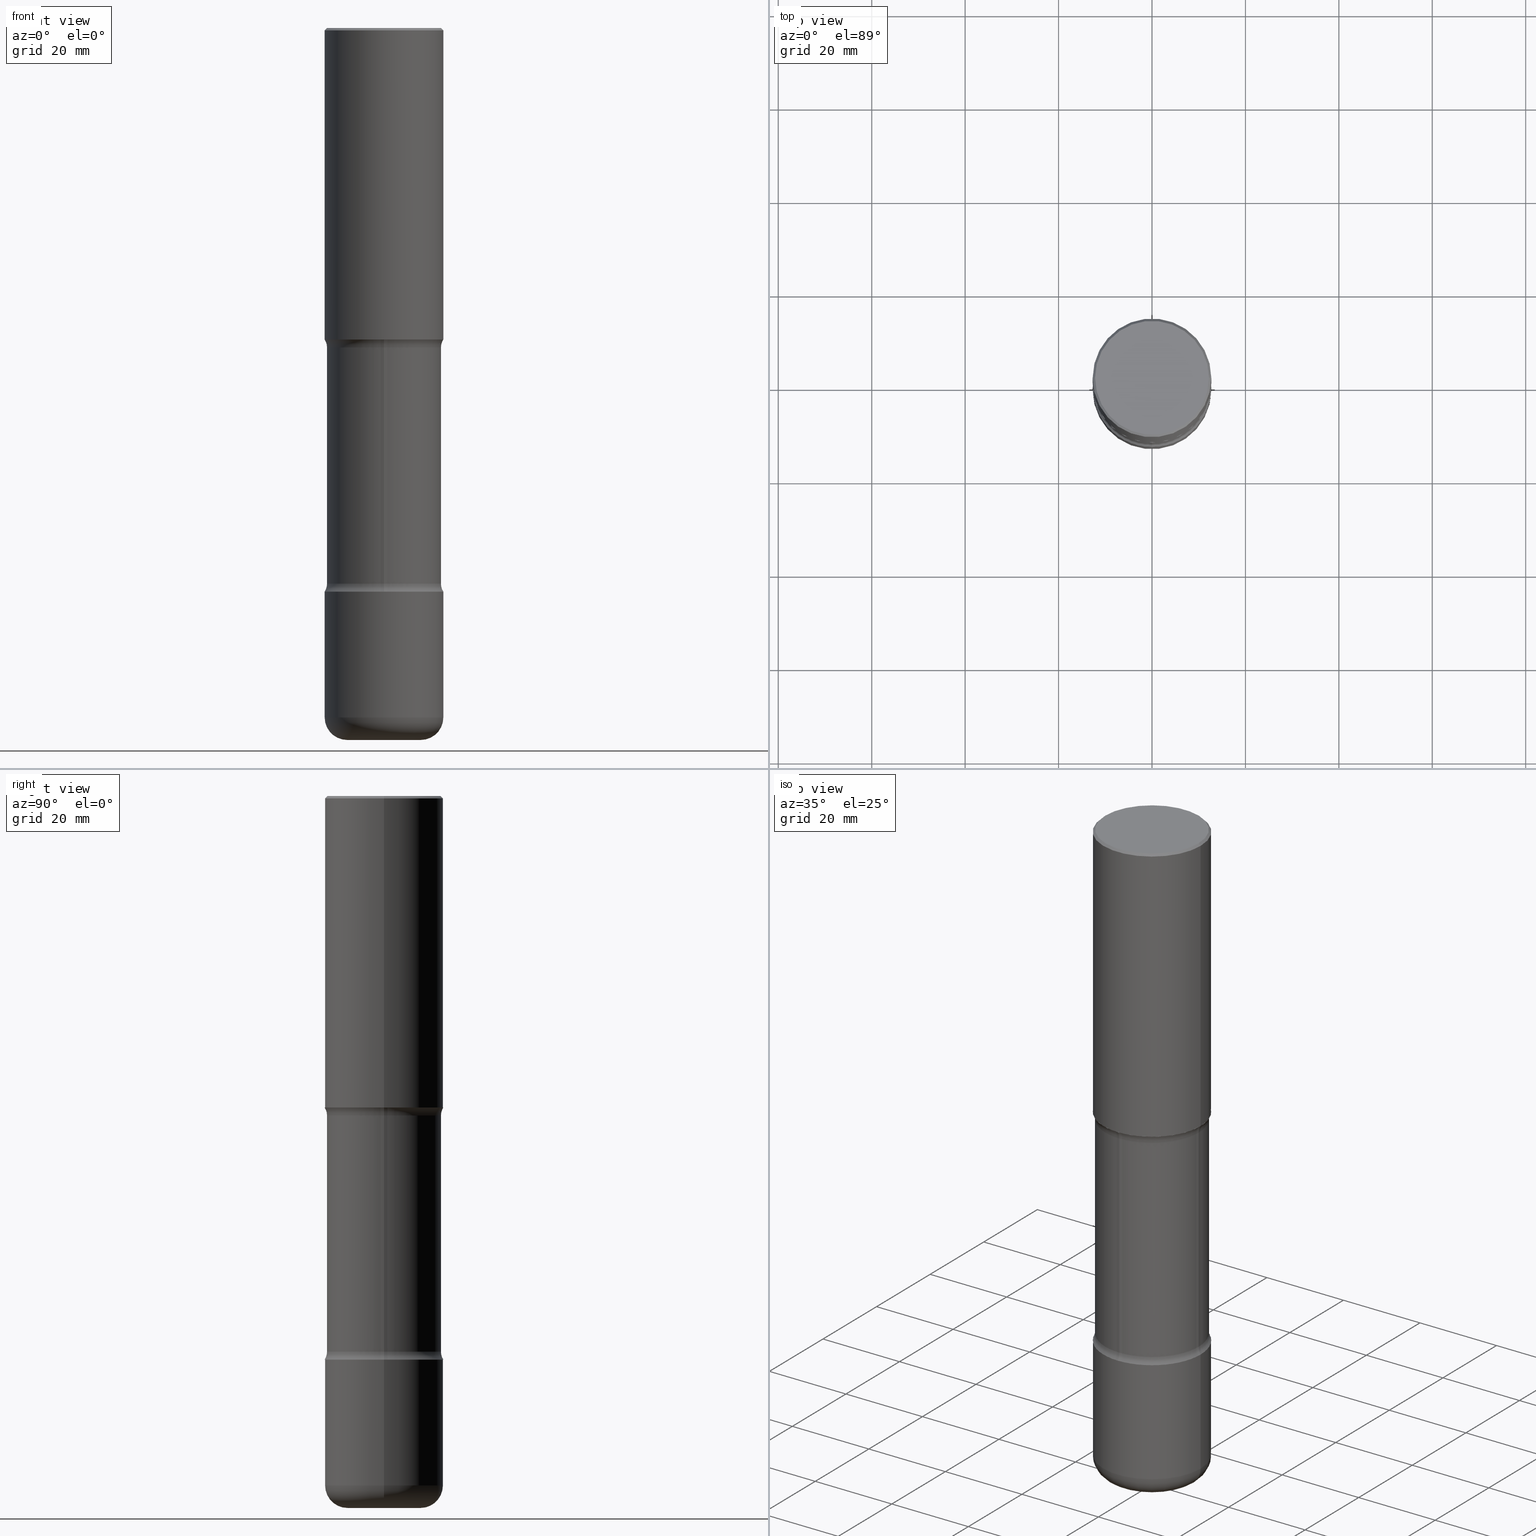
[diagram: canonical four-view strip — front | top / right | iso, engineering-drawing reading convention]
A machine part, canonical four-view strip (front | top / right | iso — engineering-drawing reading convention). The complete STEP part file that produces these views, byte-faithful:
ISO-10303-21;
HEADER;
FILE_DESCRIPTION (( 'STEP AP203' ),
    '1' );
FILE_NAME ('35811.STEP',
    '2023-03-11T07:11:37',
    ( '' ),
    ( '' ),
    'SwSTEP 2.0',
    'SolidWorks 2022',
    '' );
FILE_SCHEMA (( 'CONFIG_CONTROL_DESIGN' ));
ENDSEC;

DATA;
#1 = DIRECTION ( 'NONE',  ( 0.000000000000000000, 0.000000000000000000, 1.000000000000000000 ) ) ;
#2 = DIRECTION ( 'NONE',  ( -2.445468806185136597E-29, 3.491481338843145583E-15, 1.000000000000000000 ) ) ;
#3 = ADVANCED_FACE ( 'NONE', ( #529 ), #305, .F. ) ;
#4 = CC_DESIGN_DATE_AND_TIME_ASSIGNMENT ( #755, #13, ( #414 ) ) ;
#5 = COORDINATED_UNIVERSAL_TIME_OFFSET ( 5, 0, .BEHIND. ) ;
#6 = AXIS2_PLACEMENT_3D ( 'NONE', #154, #294, #217 ) ;
#7 = VECTOR ( 'NONE', #96, 39.37007874015748143 ) ;
#8 = EDGE_LOOP ( 'NONE', ( #787, #21 ) ) ;
#9 = CARTESIAN_POINT ( 'NONE',  ( -0.4799999999999999267, -5.801881002088561447E-15, -2.692823299831254236 ) ) ;
#10 =( GEOMETRIC_REPRESENTATION_CONTEXT ( 3 ) GLOBAL_UNCERTAINTY_ASSIGNED_CONTEXT ( ( #152 ) ) GLOBAL_UNIT_ASSIGNED_CONTEXT ( ( #622, #498, #493 ) ) REPRESENTATION_CONTEXT ( 'NONE', 'WORKASPACE' ) );
#11 = TOROIDAL_SURFACE ( 'NONE', #664, 0.6050000000000000933, 0.1250000000000000000 ) ;
#12 = AXIS2_PLACEMENT_3D ( 'NONE', #806, #260, #743 ) ;
#13 = DATE_TIME_ROLE ( 'classification_date' ) ;
#14 = CYLINDRICAL_SURFACE ( 'NONE', #88, 0.5000000000000000000 ) ;
#15 = DIRECTION ( 'NONE',  ( -2.445468806185136597E-29, 3.491481338843145583E-15, 1.000000000000000000 ) ) ;
#16 = ORIENTED_EDGE ( 'NONE', *, *, #536, .T. ) ;
#17 = EDGE_CURVE ( 'NONE', #45, #494, #257, .T. ) ;
#18 = PRODUCT_DEFINITION ( 'UNKNOWN', '', #557, #621 ) ;
#19 = CARTESIAN_POINT ( 'NONE',  ( 6.419355616235984688E-29, -9.165138514463258190E-15, -2.625000000000000444 ) ) ;
#20 = CARTESIAN_POINT ( 'NONE',  ( 1.467281283711081734E-28, -2.094888803305886955E-14, -5.999999999999999112 ) ) ;
#21 = ORIENTED_EDGE ( 'NONE', *, *, #271, .T. ) ;
#22 = CARTESIAN_POINT ( 'NONE',  ( -0.4799999999999996492, 3.386736898677836436E-15, 1.280553747027767124E-17 ) ) ;
#23 = TOROIDAL_SURFACE ( 'NONE', #653, 0.6050000000000000933, 0.1250000000000000000 ) ;
#24 = APPROVAL_PERSON_ORGANIZATION ( #454, #462, #693 ) ;
#25 = DIRECTION ( 'NONE',  ( -1.000000000000000000, 7.105427357601001859E-15, 0.000000000000000000 ) ) ;
#26 = DIRECTION ( 'NONE',  ( 2.513195084323526863E-29, -3.394493453808608059E-15, -1.000000000000000000 ) ) ;
#27 = DIRECTION ( 'NONE',  ( 1.000000000000000000, -6.982962677686261189E-15, 0.000000000000000000 ) ) ;
#28 = ORIENTED_EDGE ( 'NONE', *, *, #56, .T. ) ;
#29 = DIRECTION ( 'NONE',  ( 6.982962677686265922E-15, 1.000000000000000000, -3.278217592397115862E-15 ) ) ;
#30 = ORIENTED_EDGE ( 'NONE', *, *, #340, .T. ) ;
#31 = DIRECTION ( 'NONE',  ( 1.000000000000000000, -6.982962677686265133E-15, 4.883557194083112340E-29 ) ) ;
#32 = DIRECTION ( 'NONE',  ( -2.445468806185136597E-29, 3.491481338843145583E-15, 1.000000000000000000 ) ) ;
#33 = EDGE_CURVE ( 'NONE', #311, #494, #176, .T. ) ;
#34 = AXIS2_PLACEMENT_3D ( 'NONE', #156, #81, #83 ) ;
#35 = DIRECTION ( 'NONE',  ( 2.513195084323526863E-29, -3.394493453808608059E-15, -1.000000000000000000 ) ) ;
#36 = CARTESIAN_POINT ( 'NONE',  ( 1.109289089035737502E-27, -1.583770827071991708E-13, -45.36099934008962720 ) ) ;
#37 = EDGE_CURVE ( 'NONE', #120, #599, #371, .T. ) ;
#38 = CARTESIAN_POINT ( 'NONE',  ( -0.4999999999999996114, -1.673279289987817833E-14, -5.810000000000000497 ) ) ;
#39 = ORIENTED_EDGE ( 'NONE', *, *, #652, .T. ) ;
#40 = ORIENTED_EDGE ( 'NONE', *, *, #392, .T. ) ;
#41 = ADVANCED_FACE ( 'NONE', ( #501 ), #11, .F. ) ;
#42 = DIRECTION ( 'NONE',  ( 6.982962677686265922E-15, 1.000000000000000000, -2.276539994720218757E-15 ) ) ;
#43 = CARTESIAN_POINT ( 'NONE',  ( 0.5000000000000001110, -2.007601769834807675E-14, -4.750000000000000000 ) ) ;
#44 = DIRECTION ( 'NONE',  ( -2.438088387897960049E-29, 3.491481338843145188E-15, 1.000000000000000000 ) ) ;
#45 = VERTEX_POINT ( 'NONE', #636 ) ;
#46 = AXIS2_PLACEMENT_3D ( 'NONE', #198, #203, #377 ) ;
#47 = VECTOR ( 'NONE', #109, 39.37007874015748854 ) ;
#48 = AXIS2_PLACEMENT_3D ( 'NONE', #368, #57, #543 ) ;
#49 = AXIS2_PLACEMENT_3D ( 'NONE', #427, #216, #580 ) ;
#50 = CARTESIAN_POINT ( 'NONE',  ( 1.473465238116466876E-28, -2.079683321267085678E-14, -5.990920599932144874 ) ) ;
#51 = ADVANCED_FACE ( 'NONE', ( #625 ), #433, .T. ) ;
#52 = ORIENTED_EDGE ( 'NONE', *, *, #641, .T. ) ;
#53 = ORIENTED_EDGE ( 'NONE', *, *, #188, .T. ) ;
#54 = CARTESIAN_POINT ( 'NONE',  ( -0.5000000000000001110, -1.303182268070444404E-14, -4.750000000000000000 ) ) ;
#55 = ORIENTED_EDGE ( 'NONE', *, *, #578, .T. ) ;
#56 = EDGE_CURVE ( 'NONE', #183, #422, #802, .T. ) ;
#57 = DIRECTION ( 'NONE',  ( 2.513195084323526863E-29, -3.394493453808608059E-15, -1.000000000000000000 ) ) ;
#58 = DIRECTION ( 'NONE',  ( -2.445468806185136597E-29, 3.491481338843145583E-15, 1.000000000000000000 ) ) ;
#59 = CARTESIAN_POINT ( 'NONE',  ( -0.5000000000000000000, -1.488230779029130882E-14, -4.750000000000000000 ) ) ;
#60 = ORIENTED_EDGE ( 'NONE', *, *, #499, .T. ) ;
#61 = CARTESIAN_POINT ( 'NONE',  ( 0.000000000000000000, 0.000000000000000000, 0.000000000000000000 ) ) ;
#62 = CARTESIAN_POINT ( 'NONE',  ( 6.585215380305856913E-29, -9.401942300162846399E-15, -2.692823299831254236 ) ) ;
#63 = CIRCLE ( 'NONE', #232, 0.4999999999999999445 ) ;
#64 = CARTESIAN_POINT ( 'NONE',  ( 5.810467183974084067E-16, -2.091718747715406976E-14, -5.990920599932144874 ) ) ;
#65 = CARTESIAN_POINT ( 'NONE',  ( 0.5000000000000001110, -1.265661985330639470E-14, -2.625000000000000444 ) ) ;
#66 = ORIENTED_EDGE ( 'NONE', *, *, #346, .F. ) ;
#67 = FACE_OUTER_BOUND ( 'NONE', #239, .T. ) ;
#68 = ORIENTED_EDGE ( 'NONE', *, *, #85, .T. ) ;
#69 = ADVANCED_FACE ( 'NONE', ( #496 ), #73, .T. ) ;
#70 = CARTESIAN_POINT ( 'NONE',  ( -0.5000000000000001110, -5.612424835662757260E-15, -2.625000000000000444 ) ) ;
#71 = ORIENTED_EDGE ( 'NONE', *, *, #226, .T. ) ;
#72 = DIRECTION ( 'NONE',  ( -2.445468806185136597E-29, 3.491481338843145583E-15, 1.000000000000000000 ) ) ;
#73 = PLANE ( 'NONE',  #626 ) ;
#74 = FACE_OUTER_BOUND ( 'NONE', #490, .T. ) ;
#75 = CIRCLE ( 'NONE', #502, 0.5000000000000000000 ) ;
#76 = CARTESIAN_POINT ( 'NONE',  ( -5.810467183971152463E-16, -2.091718747715406029E-14, -5.990920599932144874 ) ) ;
#77 = AXIS2_PLACEMENT_3D ( 'NONE', #175, #307, #416 ) ;
#78 = CYLINDRICAL_SURFACE ( 'NONE', #472, 0.4800000000000000933 ) ;
#79 = ORIENTED_EDGE ( 'NONE', *, *, #596, .F. ) ;
#80 = SECURITY_CLASSIFICATION_LEVEL ( 'unclassified' ) ;
#81 = DIRECTION ( 'NONE',  ( -6.982962677686266711E-15, -1.000000000000000000, 3.491481338843145583E-15 ) ) ;
#82 = CARTESIAN_POINT ( 'NONE',  ( -0.4999999999999996669, 3.421651712066267691E-15, -0.02000000000000010797 ) ) ;
#83 = DIRECTION ( 'NONE',  ( 1.000000000000000000, -6.982962677686265133E-15, 0.000000000000000000 ) ) ;
#84 = DIRECTION ( 'NONE',  ( 2.513195084323526863E-29, -3.394493453808608059E-15, -1.000000000000000000 ) ) ;
#85 = EDGE_CURVE ( 'NONE', #553, #125, #286, .T. ) ;
#86 = CARTESIAN_POINT ( 'NONE',  ( 1.505635220232202175E-28, -2.033614075875680157E-14, -5.990920599932144874 ) ) ;
#87 = DIRECTION ( 'NONE',  ( 6.982962677686266711E-15, 1.000000000000000000, -3.394493453808608453E-15 ) ) ;
#88 = AXIS2_PLACEMENT_3D ( 'NONE', #134, #629, #129 ) ;
#89 = CIRCLE ( 'NONE', #382, 0.4799999999999999267 ) ;
#90 = LOCAL_TIME ( 2, 11, 37.00000000000000000, #448 ) ;
#91 = CARTESIAN_POINT ( 'NONE',  ( 4.224692420000255573E-15, 0.6049999999999904343, -2.692823299831256456 ) ) ;
#92 = DIRECTION ( 'NONE',  ( 2.438088387897960049E-29, -3.491481338843145188E-15, -1.000000000000000000 ) ) ;
#93 = MANIFOLD_SOLID_BREP ( 'Body-Move/Copy2[2]', #675 ) ;
#94 = EDGE_CURVE ( 'NONE', #719, #183, #162, .T. ) ;
#95 = DIRECTION ( 'NONE',  ( -6.982962677686269077E-15, -1.000000000000000000, 0.000000000000000000 ) ) ;
#96 = DIRECTION ( 'NONE',  ( -2.445468806185136877E-29, 3.491481338843145188E-15, 1.000000000000000000 ) ) ;
#97 = FACE_OUTER_BOUND ( 'NONE', #756, .T. ) ;
#98 = DIRECTION ( 'NONE',  ( -1.000000000000000000, 6.982962677686266711E-15, 0.000000000000000000 ) ) ;
#99 = ADVANCED_FACE ( 'NONE', ( #67 ), #573, .T. ) ;
#100 = DIRECTION ( 'NONE',  ( -1.000000000000000000, 7.105427357600994759E-15, 0.000000000000000000 ) ) ;
#101 = ORIENTED_EDGE ( 'NONE', *, *, #453, .T. ) ;
#102 = CIRCLE ( 'NONE', #34, 0.1899999999999993361 ) ;
#103 = FACE_OUTER_BOUND ( 'NONE', #224, .T. ) ;
#104 = TOROIDAL_SURFACE ( 'NONE', #608, 0.6049999999999999822, 0.1250000000000001665 ) ;
#105 = AXIS2_PLACEMENT_3D ( 'NONE', #189, #431, #680 ) ;
#106 = FACE_OUTER_BOUND ( 'NONE', #284, .T. ) ;
#107 = VERTEX_POINT ( 'NONE', #488 ) ;
#108 = ORIENTED_EDGE ( 'NONE', *, *, #17, .T. ) ;
#109 = DIRECTION ( 'NONE',  ( 0.9993908270190957621, -6.978169709227544643E-15, -0.03489949670250174635 ) ) ;
#110 = LINE ( 'NONE', #423, #517 ) ;
#111 = ORIENTED_EDGE ( 'NONE', *, *, #606, .T. ) ;
#112 = ORIENTED_EDGE ( 'NONE', *, *, #442, .F. ) ;
#113 = CIRCLE ( 'NONE', #464, 0.4800000000000001488 ) ;
#114 = EDGE_LOOP ( 'NONE', ( #360, #731 ) ) ;
#115 = VECTOR ( 'NONE', #591, 39.37007874015748143 ) ;
#116 = APPROVAL_PERSON_ORGANIZATION ( #131, #247, #758 ) ;
#117 = EDGE_CURVE ( 'NONE', #180, #436, #603, .T. ) ;
#118 = CIRCLE ( 'NONE', #390, 0.1250000000000000278 ) ;
#119 = FACE_OUTER_BOUND ( 'NONE', #790, .T. ) ;
#120 = VERTEX_POINT ( 'NONE', #574 ) ;
#121 = ORIENTED_EDGE ( 'NONE', *, *, #733, .F. ) ;
#122 = DIRECTION ( 'NONE',  ( 6.860497997771532351E-15, 1.000000000000000000, 0.000000000000000000 ) ) ;
#123 = ADVANCED_FACE ( 'NONE', ( #272 ), #429, .T. ) ;
#124 = DIRECTION ( 'NONE',  ( 1.000000000000000000, -6.982962677686269866E-15, 0.000000000000000000 ) ) ;
#125 = VERTEX_POINT ( 'NONE', #441 ) ;
#126 = DIRECTION ( 'NONE',  ( 1.000000000000000000, -6.982962677686265133E-15, 0.000000000000000000 ) ) ;
#127 =( LENGTH_UNIT ( ) NAMED_UNIT ( * ) SI_UNIT ( $, .METRE. ) );
#128 = VERTEX_POINT ( 'NONE', #691 ) ;
#129 = DIRECTION ( 'NONE',  ( 1.000000000000000000, -6.982962677686266711E-15, 4.876176775795935793E-29 ) ) ;
#130 = AXIS2_PLACEMENT_3D ( 'NONE', #771, #230, #237 ) ;
#131 = PERSON_AND_ORGANIZATION ( #658, #206 ) ;
#132 = LOCAL_TIME ( 2, 11, 37.00000000000000000, #5 ) ;
#133 = ORIENTED_EDGE ( 'NONE', *, *, #297, .T. ) ;
#134 = CARTESIAN_POINT ( 'NONE',  ( 0.000000000000000000, 0.000000000000000000, 0.000000000000000000 ) ) ;
#135 = ORIENTED_EDGE ( 'NONE', *, *, #192, .F. ) ;
#136 = PERSON_AND_ORGANIZATION ( #658, #206 ) ;
#137 = VERTEX_POINT ( 'NONE', #567 ) ;
#138 = DATE_AND_TIME ( #558, #160 ) ;
#139 = CARTESIAN_POINT ( 'NONE',  ( 0.4800000000000000933, -1.251696059975266810E-14, -2.625000000000000444 ) ) ;
#140 = DIRECTION ( 'NONE',  ( -1.000000000000000000, 6.982962677686265922E-15, -4.876176775795935793E-29 ) ) ;
#141 = ADVANCED_FACE ( 'NONE', ( #742 ), #14, .T. ) ;
#142 = CALENDAR_DATE ( 2023, 11, 3 ) ;
#143 = CIRCLE ( 'NONE', #49, 0.5000000000000000000 ) ;
#144 = ADVANCED_FACE ( 'NONE', ( #384 ), #158, .F. ) ;
#145 = AXIS2_PLACEMENT_3D ( 'NONE', #718, #229, #168 ) ;
#146 = FACE_OUTER_BOUND ( 'NONE', #114, .T. ) ;
#147 = DIRECTION ( 'NONE',  ( 1.000000000000000000, -6.982962677686267499E-15, 4.876036955247132767E-29 ) ) ;
#148 = DIRECTION ( 'NONE',  ( 1.000000000000000000, -6.982962677686267499E-15, 4.876176775795936353E-29 ) ) ;
#149 = DIRECTION ( 'NONE',  ( 1.000000000000000000, 0.000000000000000000, 0.000000000000000000 ) ) ;
#150 = DIRECTION ( 'NONE',  ( 6.860497997771532351E-15, 1.000000000000000000, 0.000000000000000000 ) ) ;
#151 = ORIENTED_EDGE ( 'NONE', *, *, #774, .F. ) ;
#152 = UNCERTAINTY_MEASURE_WITH_UNIT (LENGTH_MEASURE( 1.000000000000000082E-05 ), #622, 'distance_accuracy_value', 'NONE');
#153 = ORIENTED_EDGE ( 'NONE', *, *, #562, .F. ) ;
#154 = CARTESIAN_POINT ( 'NONE',  ( 0.000000000000000000, 0.000000000000000000, 0.000000000000000000 ) ) ;
#155 = DIRECTION ( 'NONE',  ( -1.000000000000000000, 6.982962677686265922E-15, -4.883557194083112340E-29 ) ) ;
#156 = CARTESIAN_POINT ( 'NONE',  ( 0.3099999999999999978, -2.245022500876142257E-14, -5.810000000000000497 ) ) ;
#157 = DIRECTION ( 'NONE',  ( 1.000000000000000000, -6.982962677686267499E-15, 4.883557194083112901E-29 ) ) ;
#158 = TOROIDAL_SURFACE ( 'NONE', #714, 0.6050000000000000933, 0.1250000000000000000 ) ;
#159 = AXIS2_PLACEMENT_3D ( 'NONE', #786, #379, #481 ) ;
#160 = LOCAL_TIME ( 2, 11, 37.00000000000000000, #439 ) ;
#161 = FACE_OUTER_BOUND ( 'NONE', #330, .T. ) ;
#162 = CIRCLE ( 'NONE', #355, 0.4800000000000001488 ) ;
#163 = DIRECTION ( 'NONE',  ( -2.445468806185136597E-29, 3.491481338843145583E-15, 1.000000000000000000 ) ) ;
#164 = CARTESIAN_POINT ( 'NONE',  ( 1.467281283711081734E-28, -2.094888803305886955E-14, -5.999999999999999112 ) ) ;
#165 = DIRECTION ( 'NONE',  ( 7.105427357601001859E-15, 1.000000000000000000, -3.491481338843145583E-15 ) ) ;
#166 = DIRECTION ( 'NONE',  ( 2.513195084323526863E-29, -3.394493453808608059E-15, -1.000000000000000000 ) ) ;
#167 = EDGE_CURVE ( 'NONE', #359, #312, #186, .T. ) ;
#168 = DIRECTION ( 'NONE',  ( 1.000000000000000000, -6.982962677686266711E-15, 0.000000000000000000 ) ) ;
#169 = DIRECTION ( 'NONE',  ( 7.105427357601001859E-15, 1.000000000000000000, -3.491481338843145583E-15 ) ) ;
#170 = ADVANCED_FACE ( 'NONE', ( #696 ), #801, .T. ) ;
#171 = CARTESIAN_POINT ( 'NONE',  ( 1.420817376393564695E-28, -2.028550657867867926E-14, -5.810000000000000497 ) ) ;
#172 = ORIENTED_EDGE ( 'NONE', *, *, #430, .T. ) ;
#173 = AXIS2_PLACEMENT_3D ( 'NONE', #314, #640, #221 ) ;
#174 = AXIS2_PLACEMENT_3D ( 'NONE', #61, #317, #554 ) ;
#175 = CARTESIAN_POINT ( 'NONE',  ( 6.419355616235984688E-29, -9.165138514463258190E-15, -2.625000000000000444 ) ) ;
#176 = LINE ( 'NONE', #678, #702 ) ;
#177 = ADVANCED_FACE ( 'NONE', ( #196 ), #316, .T. ) ;
#178 = CARTESIAN_POINT ( 'NONE',  ( 0.4800000000000001488, -1.969955465909477141E-14, -4.682176700168747985 ) ) ;
#179 = ORIENTED_EDGE ( 'NONE', *, *, #226, .F. ) ;
#180 = VERTEX_POINT ( 'NONE', #86 ) ;
#181 = ORIENTED_EDGE ( 'NONE', *, *, #94, .F. ) ;
#182 = DIRECTION ( 'NONE',  ( 2.513195084323526863E-29, -3.394493453808608059E-15, -1.000000000000000000 ) ) ;
#183 = VERTEX_POINT ( 'NONE', #289 ) ;
#184 = ORIENTED_EDGE ( 'NONE', *, *, #271, .F. ) ;
#185 = ADVANCED_BREP_SHAPE_REPRESENTATION ( '35811', ( #375, #93, #635, #642, #222 ), #10 ) ;
#186 = CIRCLE ( 'NONE', #366, 0.5000000000000000000 ) ;
#187 = CIRCLE ( 'NONE', #282, 0.4800000000000001488 ) ;
#188 = EDGE_CURVE ( 'NONE', #686, #128, #102, .T. ) ;
#189 = CARTESIAN_POINT ( 'NONE',  ( 1.467281283711081734E-28, -2.094888803305886955E-14, -5.999999999999999112 ) ) ;
#190 = ORIENTED_EDGE ( 'NONE', *, *, #644, .T. ) ;
#191 = DIRECTION ( 'NONE',  ( 1.000000000000000000, -6.860497997771530774E-15, 4.841986638653779297E-29 ) ) ;
#192 = EDGE_CURVE ( 'NONE', #727, #378, #235, .T. ) ;
#193 = DIRECTION ( 'NONE',  ( 2.513195084323527144E-29, -3.394493453808608059E-15, -1.000000000000000000 ) ) ;
#194 = EDGE_CURVE ( 'NONE', #120, #686, #712, .T. ) ;
#195 = ORIENTED_EDGE ( 'NONE', *, *, #527, .T. ) ;
#196 = FACE_OUTER_BOUND ( 'NONE', #620, .T. ) ;
#197 = CARTESIAN_POINT ( 'NONE',  ( 1.145011706530952997E-28, -1.634773257380536149E-14, -4.682176700168747985 ) ) ;
#198 = CARTESIAN_POINT ( 'NONE',  ( 6.419355616235984688E-29, -9.165138514463258190E-15, -2.625000000000000444 ) ) ;
#199 = APPROVAL_ROLE ( '' ) ;
#200 = DIRECTION ( 'NONE',  ( -0.9993908270190957621, 6.856857904024554104E-15, -0.03489949670250174635 ) ) ;
#201 = ORIENTED_EDGE ( 'NONE', *, *, #364, .F. ) ;
#202 = TOROIDAL_SURFACE ( 'NONE', #269, 0.3099999999999999978, 0.1899999999999993638 ) ;
#203 = DIRECTION ( 'NONE',  ( -2.445468806185136597E-29, 3.491481338843145583E-15, 1.000000000000000000 ) ) ;
#204 = VECTOR ( 'NONE', #634, 39.37007874015748143 ) ;
#205 = PERSON_AND_ORGANIZATION_ROLE ( 'creator' ) ;
#206 = ORGANIZATION ( 'UNSPECIFIED', 'UNSPECIFIED', '' ) ;
#207 = TOROIDAL_SURFACE ( 'NONE', #776, 0.6049999999999998712, 0.1250000000000001665 ) ;
#208 = ADVANCED_FACE ( 'NONE', ( #97 ), #709, .T. ) ;
#209 = APPROVAL_STATUS ( 'not_yet_approved' ) ;
#210 = DIRECTION ( 'NONE',  ( 1.000000000000000000, -6.982962677686266711E-15, 0.000000000000000000 ) ) ;
#211 = CARTESIAN_POINT ( 'NONE',  ( 1.145011706530952997E-28, -1.634773257380536149E-14, -4.682176700168747985 ) ) ;
#212 = EDGE_CURVE ( 'NONE', #602, #277, #485, .T. ) ;
#213 = DIRECTION ( 'NONE',  ( 2.513195084323526863E-29, -3.394493453808608059E-15, -1.000000000000000000 ) ) ;
#214 = ADVANCED_FACE ( 'NONE', ( #161 ), #202, .T. ) ;
#215 = PERSON_AND_ORGANIZATION_ROLE ( 'design_supplier' ) ;
#216 = DIRECTION ( 'NONE',  ( 2.513195084323526863E-29, -3.394493453808608059E-15, -1.000000000000000000 ) ) ;
#217 = DIRECTION ( 'NONE',  ( 1.000000000000000000, -6.982962677686266711E-15, 4.876176775795935793E-29 ) ) ;
#218 = AXIS2_PLACEMENT_3D ( 'NONE', #581, #213, #753 ) ;
#219 = CIRCLE ( 'NONE', #319, 0.1250000000000001665 ) ;
#220 = ORIENTED_EDGE ( 'NONE', *, *, #117, .T. ) ;
#221 = DIRECTION ( 'NONE',  ( -6.982962677686265922E-15, -1.000000000000000000, 3.394493453808608059E-15 ) ) ;
#222 = AXIS2_PLACEMENT_3D ( 'NONE', #575, #1, #149 ) ;
#223 = AXIS2_PLACEMENT_3D ( 'NONE', #36, #409, #779 ) ;
#224 = EDGE_LOOP ( 'NONE', ( #632, #326, #584, #690 ) ) ;
#225 = DIRECTION ( 'NONE',  ( 1.000000000000000000, -6.982962677686266711E-15, 0.000000000000000000 ) ) ;
#226 = EDGE_CURVE ( 'NONE', #494, #45, #113, .T. ) ;
#227 = ORIENTED_EDGE ( 'NONE', *, *, #644, .F. ) ;
#228 = CARTESIAN_POINT ( 'NONE',  ( 4.224692420000306060E-15, 0.6049999999999837730, -4.682176700168749761 ) ) ;
#229 = DIRECTION ( 'NONE',  ( -2.445468806185136597E-29, 3.491481338843145583E-15, 1.000000000000000000 ) ) ;
#230 = DIRECTION ( 'NONE',  ( 2.513195084323526583E-29, -3.394493453808608059E-15, -1.000000000000000000 ) ) ;
#231 = AXIS2_PLACEMENT_3D ( 'NONE', #388, #576, #759 ) ;
#232 = AXIS2_PLACEMENT_3D ( 'NONE', #343, #32, #588 ) ;
#233 = LOCAL_TIME ( 2, 11, 37.00000000000000000, #512 ) ;
#234 = CARTESIAN_POINT ( 'NONE',  ( -3.131554243005659264E-46, 4.471029511141341874E-32, 1.280553747030123384E-17 ) ) ;
#235 = CIRCLE ( 'NONE', #552, 0.1250000000000001665 ) ;
#236 = DIRECTION ( 'NONE',  ( 1.000000000000000000, -6.982962677686266711E-15, 0.000000000000000000 ) ) ;
#237 = DIRECTION ( 'NONE',  ( 6.982962677686265922E-15, 1.000000000000000000, -3.394493453808608059E-15 ) ) ;
#238 = CARTESIAN_POINT ( 'NONE',  ( 0.4999999999999998335, -3.491481338843132566E-15, 2.438088387897967336E-29 ) ) ;
#239 = EDGE_LOOP ( 'NONE', ( #421, #383, #264, #679 ) ) ;
#240 = ORIENTED_EDGE ( 'NONE', *, *, #562, .T. ) ;
#241 = FACE_OUTER_BOUND ( 'NONE', #613, .T. ) ;
#242 = ORIENTED_EDGE ( 'NONE', *, *, #546, .F. ) ;
#243 = EDGE_LOOP ( 'NONE', ( #539, #55, #259, #670 ) ) ;
#244 = CIRCLE ( 'NONE', #784, 0.4799999999999996492 ) ;
#245 = DIRECTION ( 'NONE',  ( 6.982962677686265922E-15, 1.000000000000000000, -2.276539994720218757E-15 ) ) ;
#246 = ORIENTED_EDGE ( 'NONE', *, *, #453, .F. ) ;
#247 = APPROVAL ( #274, 'UNSPECIFIED' ) ;
#248 = CYLINDRICAL_SURFACE ( 'NONE', #77, 0.4800000000000000933 ) ;
#249 = ORIENTED_EDGE ( 'NONE', *, *, #596, .T. ) ;
#250 = ORIENTED_EDGE ( 'NONE', *, *, #698, .F. ) ;
#251 = PLANE ( 'NONE',  #105 ) ;
#252 = ORIENTED_EDGE ( 'NONE', *, *, #194, .T. ) ;
#253 = DIRECTION ( 'NONE',  ( 1.000000000000000000, -6.982962677686266711E-15, 0.000000000000000000 ) ) ;
#254 = TOROIDAL_SURFACE ( 'NONE', #654, 0.6049999999999998712, 0.1250000000000001665 ) ;
#255 = AXIS2_PLACEMENT_3D ( 'NONE', #550, #607, #361 ) ;
#256 = CC_DESIGN_APPROVAL ( #247, ( #414 ) ) ;
#257 = CIRCLE ( 'NONE', #48, 0.4800000000000001488 ) ;
#258 = FACE_OUTER_BOUND ( 'NONE', #676, .T. ) ;
#259 = ORIENTED_EDGE ( 'NONE', *, *, #85, .F. ) ;
#260 = DIRECTION ( 'NONE',  ( -2.445468806185136597E-29, 3.491481338843145583E-15, 1.000000000000000000 ) ) ;
#261 = PERSON_AND_ORGANIZATION ( #658, #206 ) ;
#262 = ORIENTED_EDGE ( 'NONE', *, *, #556, .T. ) ;
#263 = CARTESIAN_POINT ( 'NONE',  ( 7.991462239014168445E-29, -2.177504754746704015E-14, -4.750000000000000000 ) ) ;
#264 = ORIENTED_EDGE ( 'NONE', *, *, #546, .T. ) ;
#265 = CARTESIAN_POINT ( 'NONE',  ( -0.4800000000000000933, -5.754533382814777424E-15, -2.625000000000000444 ) ) ;
#266 = CIRCLE ( 'NONE', #593, 0.5000000000000000000 ) ;
#267 = CARTESIAN_POINT ( 'NONE',  ( 3.491481338843198436E-15, 0.4999999999999909517, -2.625000000000002220 ) ) ;
#268 = DIRECTION ( 'NONE',  ( 7.105427357601001859E-15, 1.000000000000000000, -3.491481338843145583E-15 ) ) ;
#269 = AXIS2_PLACEMENT_3D ( 'NONE', #589, #450, #31 ) ;
#270 = DIRECTION ( 'NONE',  ( -2.445468806185136597E-29, 3.491481338843145583E-15, 1.000000000000000000 ) ) ;
#271 = EDGE_CURVE ( 'NONE', #363, #537, #605, .T. ) ;
#272 = FACE_OUTER_BOUND ( 'NONE', #324, .T. ) ;
#273 = CC_DESIGN_PERSON_AND_ORGANIZATION_ASSIGNMENT ( #704, #508, ( #530 ) ) ;
#274 = APPROVAL_STATUS ( 'not_yet_approved' ) ;
#275 = ORIENTED_EDGE ( 'NONE', *, *, #652, .F. ) ;
#276 = DIRECTION ( 'NONE',  ( 2.513195084323526863E-29, -3.394493453808608059E-15, -1.000000000000000000 ) ) ;
#277 = VERTEX_POINT ( 'NONE', #395 ) ;
#278 = EDGE_LOOP ( 'NONE', ( #101, #412 ) ) ;
#279 = DIRECTION ( 'NONE',  ( 1.000000000000000000, -6.860497997771530774E-15, 4.841986638653779297E-29 ) ) ;
#280 = ORIENTED_EDGE ( 'NONE', *, *, #521, .T. ) ;
#281 = DIRECTION ( 'NONE',  ( -2.445468806185136597E-29, 3.491481338843145583E-15, 1.000000000000000000 ) ) ;
#282 = AXIS2_PLACEMENT_3D ( 'NONE', #781, #544, #124 ) ;
#283 = CC_DESIGN_SECURITY_CLASSIFICATION ( #414, ( #557 ) ) ;
#284 = EDGE_LOOP ( 'NONE', ( #190, #172 ) ) ;
#285 = LINE ( 'NONE', #82, #204 ) ;
#286 = CIRCLE ( 'NONE', #12, 0.4999999999999996669 ) ;
#287 = CC_DESIGN_DATE_AND_TIME_ASSIGNMENT ( #396, #336, ( #18 ) ) ;
#288 = ORIENTED_EDGE ( 'NONE', *, *, #499, .F. ) ;
#289 = CARTESIAN_POINT ( 'NONE',  ( -0.4800000000000002043, -1.298447506143066159E-14, -4.682176700168747985 ) ) ;
#290 = CARTESIAN_POINT ( 'NONE',  ( 1.145011706530952997E-28, -1.634773257380536149E-14, -4.682176700168747985 ) ) ;
#291 = DIRECTION ( 'NONE',  ( -1.000000000000000000, 6.982962677686265922E-15, -4.883557194083112340E-29 ) ) ;
#292 = CARTESIAN_POINT ( 'NONE',  ( 0.4999999999999996669, -3.500078625662626713E-15, -0.02000000000000010797 ) ) ;
#293 = EDGE_LOOP ( 'NONE', ( #805, #16, #541, #135 ) ) ;
#294 = DIRECTION ( 'NONE',  ( -2.445468806185136597E-29, 3.491481338843145583E-15, 1.000000000000000000 ) ) ;
#295 = FACE_OUTER_BOUND ( 'NONE', #293, .T. ) ;
#296 = AXIS2_PLACEMENT_3D ( 'NONE', #728, #44, #798 ) ;
#297 = EDGE_CURVE ( 'NONE', #137, #436, #337, .T. ) ;
#298 = DIRECTION ( 'NONE',  ( -2.445468806185136597E-29, 3.491481338843145583E-15, 1.000000000000000000 ) ) ;
#299 = LINE ( 'NONE', #400, #524 ) ;
#300 = ORIENTED_EDGE ( 'NONE', *, *, #722, .F. ) ;
#301 = ORIENTED_EDGE ( 'NONE', *, *, #94, .T. ) ;
#302 = DIRECTION ( 'NONE',  ( -1.000000000000000000, 6.982962677686265922E-15, -4.876176775795935793E-29 ) ) ;
#303 = AXIS2_PLACEMENT_3D ( 'NONE', #403, #298, #236 ) ;
#304 = AXIS2_PLACEMENT_3D ( 'NONE', #290, #26, #466 ) ;
#305 = CONICAL_SURFACE ( 'NONE', #223, 1127.411546571455347, 1.535889741755009252 ) ;
#306 = CIRCLE ( 'NONE', #303, 0.4999999999999996669 ) ;
#307 = DIRECTION ( 'NONE',  ( -2.445468806185136597E-29, 3.491481338843145583E-15, 1.000000000000000000 ) ) ;
#308 = VERTEX_POINT ( 'NONE', #526 ) ;
#309 = ORIENTED_EDGE ( 'NONE', *, *, #340, .F. ) ;
#310 = FACE_OUTER_BOUND ( 'NONE', #482, .T. ) ;
#311 = VERTEX_POINT ( 'NONE', #476 ) ;
#312 = VERTEX_POINT ( 'NONE', #65 ) ;
#313 = ADVANCED_FACE ( 'NONE', ( #103 ), #792, .T. ) ;
#314 = CARTESIAN_POINT ( 'NONE',  ( 7.991462239014168445E-29, -2.177504754746704015E-14, -4.750000000000000000 ) ) ;
#315 = ORIENTED_EDGE ( 'NONE', *, *, #468, .T. ) ;
#316 = CYLINDRICAL_SURFACE ( 'NONE', #538, 0.4800000000000001488 ) ;
#317 = DIRECTION ( 'NONE',  ( -2.445468806185136597E-29, 3.491481338843145583E-15, 1.000000000000000000 ) ) ;
#318 = EDGE_CURVE ( 'NONE', #125, #553, #306, .T. ) ;
#319 = AXIS2_PLACEMENT_3D ( 'NONE', #532, #358, #354 ) ;
#320 = EDGE_LOOP ( 'NONE', ( #737, #604, #30, #108 ) ) ;
#321 = AXIS2_PLACEMENT_3D ( 'NONE', #469, #597, #225 ) ;
#322 = CC_DESIGN_APPROVAL ( #560, ( #557 ) ) ;
#323 = DIRECTION ( 'NONE',  ( 2.445468806185136597E-29, -3.491481338843145583E-15, -1.000000000000000000 ) ) ;
#324 = EDGE_LOOP ( 'NONE', ( #184, #111, #68, #242 ) ) ;
#325 = MECHANICAL_CONTEXT ( 'NONE', #710, 'mechanical' ) ;
#326 = ORIENTED_EDGE ( 'NONE', *, *, #417, .T. ) ;
#327 = CARTESIAN_POINT ( 'NONE',  ( 1.145011706530952997E-28, -1.634773257380536149E-14, -4.682176700168747985 ) ) ;
#328 = DIRECTION ( 'NONE',  ( 1.000000000000000000, -6.982962677686266711E-15, 4.883557194083112901E-29 ) ) ;
#329 = APPLICATION_PROTOCOL_DEFINITION ( 'international standard', 'config_control_design', 1994, #479 ) ;
#330 = EDGE_LOOP ( 'NONE', ( #647, #252, #53, #803 ) ) ;
#331 = DIRECTION ( 'NONE',  ( 2.513195084323526863E-29, -3.394493453808608059E-15, -1.000000000000000000 ) ) ;
#332 = CARTESIAN_POINT ( 'NONE',  ( -4.150601288651662179E-15, -0.6050000000000164135, -4.682176700168745320 ) ) ;
#333 = DIRECTION ( 'NONE',  ( 2.438088387897960049E-29, -3.491481338843145188E-15, -1.000000000000000000 ) ) ;
#334 = CIRCLE ( 'NONE', #406, 0.1250000000000001665 ) ;
#335 = AXIS2_PLACEMENT_3D ( 'NONE', #455, #507, #518 ) ;
#336 = DATE_TIME_ROLE ( 'creation_date' ) ;
#337 = CIRCLE ( 'NONE', #651, 0.2600000000000000644 ) ;
#338 = DIRECTION ( 'NONE',  ( 1.000000000000000000, -6.982962677686266711E-15, 0.000000000000000000 ) ) ;
#339 = CARTESIAN_POINT ( 'NONE',  ( 6.275437275191905126E-29, -9.371237770161650231E-15, -2.625000000000000444 ) ) ;
#340 = EDGE_CURVE ( 'NONE', #602, #45, #460, .T. ) ;
#341 = EDGE_LOOP ( 'NONE', ( #780, #716, #782, #201 ) ) ;
#342 = APPROVAL_DATE_TIME ( #393, #247 ) ;
#343 = CARTESIAN_POINT ( 'NONE',  ( 1.420817376393564695E-28, -2.028550657867867926E-14, -5.810000000000000497 ) ) ;
#344 = VERTEX_POINT ( 'NONE', #352 ) ;
#345 = DIRECTION ( 'NONE',  ( 2.513195084323526863E-29, -3.394493453808608059E-15, -1.000000000000000000 ) ) ;
#346 = EDGE_CURVE ( 'NONE', #308, #378, #672, .T. ) ;
#347 = CC_DESIGN_PERSON_AND_ORGANIZATION_ASSIGNMENT ( #261, #205, ( #18 ) ) ;
#348 = CARTESIAN_POINT ( 'NONE',  ( 6.585215380305856913E-29, -9.401942300162846399E-15, -2.692823299831254236 ) ) ;
#349 = CIRCLE ( 'NONE', #724, 0.2600000000000000644 ) ;
#350 = FACE_OUTER_BOUND ( 'NONE', #419, .T. ) ;
#351 = DIRECTION ( 'NONE',  ( -2.445468806185136597E-29, 3.491481338843145583E-15, 1.000000000000000000 ) ) ;
#352 = CARTESIAN_POINT ( 'NONE',  ( 0.5000000000000000000, -2.007601769834807675E-14, -4.750000000000000000 ) ) ;
#353 = CARTESIAN_POINT ( 'NONE',  ( -0.4999999999999998335, 3.552713678800499746E-15, -2.459467545127452330E-29 ) ) ;
#354 = DIRECTION ( 'NONE',  ( 1.000000000000000000, -6.982962677686269077E-15, 0.000000000000000000 ) ) ;
#355 = AXIS2_PLACEMENT_3D ( 'NONE', #197, #381, #437 ) ;
#356 = TOROIDAL_SURFACE ( 'NONE', #661, 0.3099999999999999978, 0.1899999999999993638 ) ;
#357 = AXIS2_PLACEMENT_3D ( 'NONE', #547, #169, #660 ) ;
#358 = DIRECTION ( 'NONE',  ( -6.982962677686266711E-15, -1.000000000000000000, 3.491481338843145583E-15 ) ) ;
#359 = VERTEX_POINT ( 'NONE', #70 ) ;
#360 = ORIENTED_EDGE ( 'NONE', *, *, #212, .T. ) ;
#361 = DIRECTION ( 'NONE',  ( 1.000000000000000000, -6.982962677686265133E-15, 0.000000000000000000 ) ) ;
#362 = CC_DESIGN_PERSON_AND_ORGANIZATION_ASSIGNMENT ( #136, #566, ( #414 ) ) ;
#363 = VERTEX_POINT ( 'NONE', #791 ) ;
#364 = EDGE_CURVE ( 'NONE', #719, #367, #118, .T. ) ;
#365 = PLANE ( 'NONE',  #404 ) ;
#366 = AXIS2_PLACEMENT_3D ( 'NONE', #509, #72, #338 ) ;
#367 = VERTEX_POINT ( 'NONE', #43 ) ;
#368 = CARTESIAN_POINT ( 'NONE',  ( 1.144552364564089489E-28, -1.635431061221206023E-14, -4.682176700168747985 ) ) ;
#369 = AXIS2_PLACEMENT_3D ( 'NONE', #339, #276, #389 ) ;
#370 = CC_DESIGN_APPROVAL ( #462, ( #18 ) ) ;
#371 = CIRCLE ( 'NONE', #357, 0.1899999999999993361 ) ;
#372 = AXIS2_PLACEMENT_3D ( 'NONE', #561, #659, #98 ) ;
#373 = DIRECTION ( 'NONE',  ( -1.000000000000000000, 6.982962677686266711E-15, 0.000000000000000000 ) ) ;
#374 = EDGE_LOOP ( 'NONE', ( #438, #788, #624, #474 ) ) ;
#375 = MANIFOLD_SOLID_BREP ( 'Body-Move/Copy2[1]', #444 ) ;
#376 = ORIENTED_EDGE ( 'NONE', *, *, #192, .T. ) ;
#377 = DIRECTION ( 'NONE',  ( 1.000000000000000000, -6.982962677686266711E-15, 0.000000000000000000 ) ) ;
#378 = VERTEX_POINT ( 'NONE', #267 ) ;
#379 = DIRECTION ( 'NONE',  ( -2.445468806185136597E-29, 3.491481338843145583E-15, 1.000000000000000000 ) ) ;
#380 = EDGE_LOOP ( 'NONE', ( #684, #800, #486, #612 ) ) ;
#381 = DIRECTION ( 'NONE',  ( -2.445468806185136597E-29, 3.491481338843145583E-15, 1.000000000000000000 ) ) ;
#382 = AXIS2_PLACEMENT_3D ( 'NONE', #348, #58, #126 ) ;
#383 = ORIENTED_EDGE ( 'NONE', *, *, #739, .F. ) ;
#384 = FACE_OUTER_BOUND ( 'NONE', #399, .T. ) ;
#385 = EDGE_LOOP ( 'NONE', ( #301, #28, #288, #564 ) ) ;
#386 = DIRECTION ( 'NONE',  ( -2.445468806185136877E-29, 3.491481338843145188E-15, 1.000000000000000000 ) ) ;
#387 = APPROVAL_DATE_TIME ( #138, #560 ) ;
#388 = CARTESIAN_POINT ( 'NONE',  ( 6.419355616235984688E-29, -9.165138514463258190E-15, -2.625000000000000444 ) ) ;
#389 = DIRECTION ( 'NONE',  ( 6.982962677686265922E-15, 1.000000000000000000, -3.278217592397114284E-15 ) ) ;
#390 = AXIS2_PLACEMENT_3D ( 'NONE', #804, #610, #27 ) ;
#391 = CIRCLE ( 'NONE', #255, 0.4799999999999999267 ) ;
#392 = EDGE_CURVE ( 'NONE', #311, #727, #677, .T. ) ;
#393 = DATE_AND_TIME ( #142, #90 ) ;
#394 = PLANE ( 'NONE',  #173 ) ;
#395 = CARTESIAN_POINT ( 'NONE',  ( -3.430248998885649424E-15, -0.5000000000000166533, -4.749999999999999112 ) ) ;
#396 = DATE_AND_TIME ( #744, #766 ) ;
#397 = CARTESIAN_POINT ( 'NONE',  ( 6.442142435949335900E-29, -9.606830899687665303E-15, -2.692823299831254236 ) ) ;
#398 = ADVANCED_FACE ( 'NONE', ( #74 ), #207, .F. ) ;
#399 = EDGE_LOOP ( 'NONE', ( #112, #315, #71, #309 ) ) ;
#400 = CARTESIAN_POINT ( 'NONE',  ( -0.5000000000000000000, 3.552713678800500929E-15, -2.459467545127452891E-29 ) ) ;
#401 = CARTESIAN_POINT ( 'NONE',  ( 1.161597682937940108E-28, -1.658453635950494339E-14, -4.750000000000000000 ) ) ;
#402 = AXIS2_PLACEMENT_3D ( 'NONE', #401, #345, #29 ) ;
#403 = CARTESIAN_POINT ( 'NONE',  ( 4.890937612370299433E-31, -6.982962677686328587E-17, -0.02000000000000010797 ) ) ;
#404 = AXIS2_PLACEMENT_3D ( 'NONE', #789, #471, #302 ) ;
#405 = DIRECTION ( 'NONE',  ( 1.000000000000000000, -6.982962677686272233E-15, 0.000000000000000000 ) ) ;
#406 = AXIS2_PLACEMENT_3D ( 'NONE', #565, #268, #25 ) ;
#407 = LINE ( 'NONE', #353, #7 ) ;
#408 = PLANE ( 'NONE',  #749 ) ;
#409 = DIRECTION ( 'NONE',  ( 2.445468806185136597E-29, -3.491481338843145583E-15, -1.000000000000000000 ) ) ;
#410 = CARTESIAN_POINT ( 'NONE',  ( -0.5000000000000000000, -1.064770391819559223E-15, -2.625000000000000444 ) ) ;
#411 = AXIS2_PLACEMENT_3D ( 'NONE', #650, #35, #87 ) ;
#412 = ORIENTED_EDGE ( 'NONE', *, *, #167, .T. ) ;
#413 = EDGE_CURVE ( 'NONE', #359, #422, #334, .T. ) ;
#414 = SECURITY_CLASSIFICATION ( '', '', #80 ) ;
#415 = VECTOR ( 'NONE', #386, 39.37007874015748143 ) ;
#416 = DIRECTION ( 'NONE',  ( 1.000000000000000000, -6.982962677686266711E-15, 0.000000000000000000 ) ) ;
#417 = EDGE_CURVE ( 'NONE', #687, #107, #772, .T. ) ;
#418 = DIRECTION ( 'NONE',  ( 2.513195084323527144E-29, -3.394493453808608059E-15, -1.000000000000000000 ) ) ;
#419 = EDGE_LOOP ( 'NONE', ( #467, #66 ) ) ;
#420 = LINE ( 'NONE', #435, #736 ) ;
#421 = ORIENTED_EDGE ( 'NONE', *, *, #606, .F. ) ;
#422 = VERTEX_POINT ( 'NONE', #9 ) ;
#423 = CARTESIAN_POINT ( 'NONE',  ( 0.5000000000000000000, -3.491481338843133355E-15, 2.438088387897967896E-29 ) ) ;
#424 = ORIENTED_EDGE ( 'NONE', *, *, #698, .T. ) ;
#425 = ORIENTED_EDGE ( 'NONE', *, *, #726, .F. ) ;
#426 = CIRCLE ( 'NONE', #321, 0.5000000000000000000 ) ;
#427 = CARTESIAN_POINT ( 'NONE',  ( 1.161597682937940108E-28, -1.658453635950494339E-14, -4.750000000000000000 ) ) ;
#428 = ORIENTED_EDGE ( 'NONE', *, *, #726, .T. ) ;
#429 = CONICAL_SURFACE ( 'NONE', #451, 0.4999999999999996669, 0.7853981633974450594 ) ;
#430 = EDGE_CURVE ( 'NONE', #729, #344, #75, .T. ) ;
#431 = DIRECTION ( 'NONE',  ( -2.438088387897960049E-29, 3.491481338843145188E-15, 1.000000000000000000 ) ) ;
#432 = EDGE_LOOP ( 'NONE', ( #79, #121 ) ) ;
#433 = CYLINDRICAL_SURFACE ( 'NONE', #174, 0.4999999999999998335 ) ;
#434 = FACE_OUTER_BOUND ( 'NONE', #533, .T. ) ;
#435 = CARTESIAN_POINT ( 'NONE',  ( 3.351822085289556248E-15, 0.4799999999999793321, -5.990920599932145763 ) ) ;
#436 = VERTEX_POINT ( 'NONE', #583 ) ;
#437 = DIRECTION ( 'NONE',  ( 1.000000000000000000, -6.982962677686269866E-15, 0.000000000000000000 ) ) ;
#438 = ORIENTED_EDGE ( 'NONE', *, *, #641, .F. ) ;
#439 = COORDINATED_UNIVERSAL_TIME_OFFSET ( 5, 0, .BEHIND. ) ;
#440 = EDGE_LOOP ( 'NONE', ( #39, #133 ) ) ;
#441 = CARTESIAN_POINT ( 'NONE',  ( -0.4999999999999996669, 3.421651712066267691E-15, -0.02000000000000010797 ) ) ;
#442 = EDGE_CURVE ( 'NONE', #277, #602, #143, .T. ) ;
#443 = CIRCLE ( 'NONE', #638, 0.1250000000000001665 ) ;
#444 = CLOSED_SHELL ( 'NONE', ( #717, #208, #571, #796, #214, #141, #692, #3 ) ) ;
#445 = APPLICATION_PROTOCOL_DEFINITION ( 'international standard', 'config_control_design', 1994, #710 ) ;
#446 = DIRECTION ( 'NONE',  ( 6.982962677686266711E-15, 1.000000000000000000, -3.394493453808608453E-15 ) ) ;
#447 = DIRECTION ( 'NONE',  ( 1.000000000000000000, -6.982962677686263555E-15, 0.000000000000000000 ) ) ;
#448 = COORDINATED_UNIVERSAL_TIME_OFFSET ( 5, 0, .BEHIND. ) ;
#449 = FACE_OUTER_BOUND ( 'NONE', #768, .T. ) ;
#450 = DIRECTION ( 'NONE',  ( -2.445468806185136597E-29, 3.491481338843145583E-15, 1.000000000000000000 ) ) ;
#451 = AXIS2_PLACEMENT_3D ( 'NONE', #667, #617, #495 ) ;
#452 = CIRCLE ( 'NONE', #461, 0.5000000000000000000 ) ;
#453 = EDGE_CURVE ( 'NONE', #312, #359, #266, .T. ) ;
#454 = PERSON_AND_ORGANIZATION ( #658, #206 ) ;
#455 = CARTESIAN_POINT ( 'NONE',  ( 6.445890458930413557E-29, -9.601463517454541281E-15, -2.692823299831254236 ) ) ;
#456 = DIRECTION ( 'NONE',  ( 0.7071067811865452413, -7.319954787623248157E-15, -0.7071067811865497932 ) ) ;
#457 = DIRECTION ( 'NONE',  ( 1.000000000000000000, -6.982962677686262766E-15, 0.000000000000000000 ) ) ;
#458 = DIRECTION ( 'NONE',  ( -2.445468806185136597E-29, 3.491481338843145583E-15, 1.000000000000000000 ) ) ;
#459 = ADVANCED_FACE ( 'NONE', ( #434 ), #254, .F. ) ;
#460 = CIRCLE ( 'NONE', #748, 0.1249999999999999584 ) ;
#461 = AXIS2_PLACEMENT_3D ( 'NONE', #683, #763, #210 ) ;
#462 = APPROVAL ( #643, 'UNSPECIFIED' ) ;
#463 = DIRECTION ( 'NONE',  ( -1.000000000000000000, 6.982962677686265922E-15, -4.876176775795935793E-29 ) ) ;
#464 = AXIS2_PLACEMENT_3D ( 'NONE', #523, #701, #773 ) ;
#465 = DIRECTION ( 'NONE',  ( -2.445468806185136597E-29, 3.491481338843145583E-15, 1.000000000000000000 ) ) ;
#466 = DIRECTION ( 'NONE',  ( 6.982962677686266711E-15, 1.000000000000000000, -3.394493453808608453E-15 ) ) ;
#467 = ORIENTED_EDGE ( 'NONE', *, *, #542, .F. ) ;
#468 = EDGE_CURVE ( 'NONE', #277, #494, #504, .T. ) ;
#469 = CARTESIAN_POINT ( 'NONE',  ( 1.161597682937940108E-28, -1.658453635950494339E-14, -4.750000000000000000 ) ) ;
#470 = ORIENTED_EDGE ( 'NONE', *, *, #722, .T. ) ;
#471 = DIRECTION ( 'NONE',  ( 2.438088387897960049E-29, -3.491481338843145188E-15, -1.000000000000000000 ) ) ;
#472 = AXIS2_PLACEMENT_3D ( 'NONE', #577, #15, #795 ) ;
#473 = AXIS2_PLACEMENT_3D ( 'NONE', #50, #182, #245 ) ;
#474 = ORIENTED_EDGE ( 'NONE', *, *, #430, .F. ) ;
#475 = ORIENTED_EDGE ( 'NONE', *, *, #708, .T. ) ;
#476 = CARTESIAN_POINT ( 'NONE',  ( -3.361644018907988919E-15, -0.4800000000000097522, -2.692823299831252459 ) ) ;
#477 = DIRECTION ( 'NONE',  ( 1.000000000000000000, -6.982962677686262766E-15, 0.000000000000000000 ) ) ;
#478 = ORIENTED_EDGE ( 'NONE', *, *, #536, .F. ) ;
#479 = APPLICATION_CONTEXT ( 'configuration controlled 3d designs of mechanical parts and assemblies' ) ;
#480 = ADVANCED_FACE ( 'NONE', ( #449 ), #104, .F. ) ;
#481 = DIRECTION ( 'NONE',  ( 1.000000000000000000, -6.982962677686266711E-15, 0.000000000000000000 ) ) ;
#482 = EDGE_LOOP ( 'NONE', ( #609, #513 ) ) ;
#483 = ORIENTED_EDGE ( 'NONE', *, *, #413, .F. ) ;
#484 = CARTESIAN_POINT ( 'NONE',  ( 1.467281283711081734E-28, -2.094888803305886955E-14, -5.999999999999999112 ) ) ;
#485 = CIRCLE ( 'NONE', #402, 0.5000000000000000000 ) ;
#486 = ORIENTED_EDGE ( 'NONE', *, *, #556, .F. ) ;
#487 = AXIS2_PLACEMENT_3D ( 'NONE', #332, #279, #122 ) ;
#488 = CARTESIAN_POINT ( 'NONE',  ( 0.5000000000000000000, -1.265661985330639155E-14, -2.625000000000000444 ) ) ;
#489 = DIRECTION ( 'NONE',  ( 1.000000000000000000, -6.982962677686266711E-15, 4.883557194083112901E-29 ) ) ;
#490 = EDGE_LOOP ( 'NONE', ( #483, #246, #240, #60 ) ) ;
#491 = DIRECTION ( 'NONE',  ( 1.000000000000000000, -6.982962677686267499E-15, 4.883557194083112901E-29 ) ) ;
#492 = ORIENTED_EDGE ( 'NONE', *, *, #413, .T. ) ;
#493 =( NAMED_UNIT ( * ) SI_UNIT ( $, .STERADIAN. ) SOLID_ANGLE_UNIT ( ) );
#494 = VERTEX_POINT ( 'NONE', #514 ) ;
#495 = DIRECTION ( 'NONE',  ( -1.000000000000000000, 6.982962677686266711E-15, 0.000000000000000000 ) ) ;
#496 = FACE_OUTER_BOUND ( 'NONE', #432, .T. ) ;
#497 = EDGE_CURVE ( 'NONE', #107, #687, #452, .T. ) ;
#498 =( NAMED_UNIT ( * ) PLANE_ANGLE_UNIT ( ) SI_UNIT ( $, .RADIAN. ) );
#499 = EDGE_CURVE ( 'NONE', #500, #422, #89, .T. ) ;
#500 = VERTEX_POINT ( 'NONE', #738 ) ;
#501 = FACE_OUTER_BOUND ( 'NONE', #598, .T. ) ;
#502 = AXIS2_PLACEMENT_3D ( 'NONE', #548, #510, #253 ) ;
#503 = ORIENTED_EDGE ( 'NONE', *, *, #497, .F. ) ;
#504 = CIRCLE ( 'NONE', #487, 0.1249999999999999584 ) ;
#505 = CALENDAR_DATE ( 2023, 11, 3 ) ;
#506 = EDGE_LOOP ( 'NONE', ( #250, #220, #746 ) ) ;
#507 = DIRECTION ( 'NONE',  ( 2.513195084323526863E-29, -3.394493453808608059E-15, -1.000000000000000000 ) ) ;
#508 = PERSON_AND_ORGANIZATION_ROLE ( 'design_owner' ) ;
#509 = CARTESIAN_POINT ( 'NONE',  ( 6.419355616235984688E-29, -9.165138514463258190E-15, -2.625000000000000444 ) ) ;
#510 = DIRECTION ( 'NONE',  ( -2.445468806185136597E-29, 3.491481338843145583E-15, 1.000000000000000000 ) ) ;
#511 = ADVANCED_FACE ( 'NONE', ( #146 ), #394, .F. ) ;
#512 = COORDINATED_UNIVERSAL_TIME_OFFSET ( 5, 0, .BEHIND. ) ;
#513 = ORIENTED_EDGE ( 'NONE', *, *, #194, .F. ) ;
#514 = CARTESIAN_POINT ( 'NONE',  ( -3.361644018907934882E-15, -0.4800000000000164690, -4.682176700168746208 ) ) ;
#515 = AXIS2_PLACEMENT_3D ( 'NONE', #666, #323, #373 ) ;
#516 = DIRECTION ( 'NONE',  ( 6.982962677686265922E-15, 1.000000000000000000, -3.278217592397114284E-15 ) ) ;
#517 = VECTOR ( 'NONE', #673, 39.37007874015748143 ) ;
#518 = DIRECTION ( 'NONE',  ( 6.982962677686265922E-15, 1.000000000000000000, -3.414809992080327938E-15 ) ) ;
#519 = DIRECTION ( 'NONE',  ( -2.445468806185136597E-29, 3.491481338843145583E-15, 1.000000000000000000 ) ) ;
#520 = FACE_OUTER_BOUND ( 'NONE', #380, .T. ) ;
#521 = EDGE_CURVE ( 'NONE', #727, #311, #713, .T. ) ;
#522 = FACE_OUTER_BOUND ( 'NONE', #320, .T. ) ;
#523 = CARTESIAN_POINT ( 'NONE',  ( 1.144552364564089489E-28, -1.635431061221206023E-14, -4.682176700168747985 ) ) ;
#524 = VECTOR ( 'NONE', #528, 39.37007874015748143 ) ;
#525 = LINE ( 'NONE', #292, #689 ) ;
#526 = CARTESIAN_POINT ( 'NONE',  ( -3.430248998885705433E-15, -0.5000000000000097700, -2.624999999999999112 ) ) ;
#527 = EDGE_CURVE ( 'NONE', #719, #500, #705, .T. ) ;
#528 = DIRECTION ( 'NONE',  ( -2.445468806185136877E-29, 3.491481338843145188E-15, 1.000000000000000000 ) ) ;
#529 = FACE_OUTER_BOUND ( 'NONE', #506, .T. ) ;
#530 = PRODUCT ( '35811', '35811', '', ( #325 ) ) ;
#531 = EDGE_CURVE ( 'NONE', #599, #128, #555, .T. ) ;
#532 = CARTESIAN_POINT ( 'NONE',  ( 0.6049999999999998712, -1.362663472016303492E-14, -2.692823299831254236 ) ) ;
#533 = EDGE_LOOP ( 'NONE', ( #646, #492, #428, #153 ) ) ;
#534 = DIRECTION ( 'NONE',  ( -2.445468806185136597E-29, 3.491481338843145583E-15, 1.000000000000000000 ) ) ;
#535 = AXIS2_PLACEMENT_3D ( 'NONE', #757, #645, #447 ) ;
#536 = EDGE_CURVE ( 'NONE', #311, #308, #443, .T. ) ;
#537 = VERTEX_POINT ( 'NONE', #22 ) ;
#538 = AXIS2_PLACEMENT_3D ( 'NONE', #600, #649, #42 ) ;
#539 = ORIENTED_EDGE ( 'NONE', *, *, #497, .T. ) ;
#540 = DIRECTION ( 'NONE',  ( -2.445468806185136597E-29, 3.491481338843145583E-15, 1.000000000000000000 ) ) ;
#541 = ORIENTED_EDGE ( 'NONE', *, *, #346, .T. ) ;
#542 = EDGE_CURVE ( 'NONE', #378, #308, #662, .T. ) ;
#543 = DIRECTION ( 'NONE',  ( 6.982962677686265922E-15, 1.000000000000000000, -3.414809992080327938E-15 ) ) ;
#544 = DIRECTION ( 'NONE',  ( -2.445468806185136597E-29, 3.491481338843145583E-15, 1.000000000000000000 ) ) ;
#545 = ORIENTED_EDGE ( 'NONE', *, *, #33, .T. ) ;
#546 = EDGE_CURVE ( 'NONE', #537, #125, #285, .T. ) ;
#547 = CARTESIAN_POINT ( 'NONE',  ( -0.3099999999999999978, -1.808282409782236831E-14, -5.810000000000000497 ) ) ;
#548 = CARTESIAN_POINT ( 'NONE',  ( 1.161597682937940108E-28, -1.658453635950494339E-14, -4.750000000000000000 ) ) ;
#549 = ADVANCED_FACE ( 'NONE', ( #767 ), #78, .T. ) ;
#550 = CARTESIAN_POINT ( 'NONE',  ( 6.585215380305856913E-29, -9.401942300162846399E-15, -2.692823299831254236 ) ) ;
#551 = DIMENSIONAL_EXPONENTS ( 1.000000000000000000, 0.000000000000000000, 0.000000000000000000, 0.000000000000000000, 0.000000000000000000, 0.000000000000000000, 0.000000000000000000 ) ;
#552 = AXIS2_PLACEMENT_3D ( 'NONE', #91, #291, #770 ) ;
#553 = VERTEX_POINT ( 'NONE', #760 ) ;
#554 = DIRECTION ( 'NONE',  ( 1.000000000000000000, -6.982962677686267499E-15, 4.876176775795936353E-29 ) ) ;
#555 = CIRCLE ( 'NONE', #535, 0.4999999999999999445 ) ;
#556 = EDGE_CURVE ( 'NONE', #128, #599, #63, .T. ) ;
#557 = PRODUCT_DEFINITION_FORMATION_WITH_SPECIFIED_SOURCE ( 'ANY', '', #530, .NOT_KNOWN. ) ;
#558 = CALENDAR_DATE ( 2023, 11, 3 ) ;
#559 = EDGE_LOOP ( 'NONE', ( #628, #475, #195, #425 ) ) ;
#560 = APPROVAL ( #209, 'UNSPECIFIED' ) ;
#561 = CARTESIAN_POINT ( 'NONE',  ( 4.890937612370299433E-31, -6.982962677686328587E-17, -0.02000000000000010797 ) ) ;
#562 = EDGE_CURVE ( 'NONE', #312, #500, #219, .T. ) ;
#563 = APPROVAL_DATE_TIME ( #627, #462 ) ;
#564 = ORIENTED_EDGE ( 'NONE', *, *, #527, .F. ) ;
#565 = CARTESIAN_POINT ( 'NONE',  ( -0.6049999999999998712, -5.103158748814240401E-15, -2.692823299831254236 ) ) ;
#566 = PERSON_AND_ORGANIZATION_ROLE ( 'classification_officer' ) ;
#567 = CARTESIAN_POINT ( 'NONE',  ( 0.2600000000000000089, -2.273261751247946738E-14, -5.999999999999999112 ) ) ;
#568 = DIRECTION ( 'NONE',  ( -2.445468806185136877E-29, 3.491481338843145188E-15, 1.000000000000000000 ) ) ;
#569 = VECTOR ( 'NONE', #200, 39.37007874015748854 ) ;
#570 = TOROIDAL_SURFACE ( 'NONE', #304, 0.6050000000000000933, 0.1250000000000000000 ) ;
#571 = ADVANCED_FACE ( 'NONE', ( #520 ), #356, .T. ) ;
#572 = AXIS2_PLACEMENT_3D ( 'NONE', #484, #540, #477 ) ;
#573 = CONICAL_SURFACE ( 'NONE', #372, 0.4999999999999996669, 0.7853981633974450594 ) ;
#574 = CARTESIAN_POINT ( 'NONE',  ( -0.3100000000000000533, -1.773949922604037162E-14, -5.999999999999999112 ) ) ;
#575 = CARTESIAN_POINT ( 'NONE',  ( 0.000000000000000000, 0.000000000000000000, 0.000000000000000000 ) ) ;
#576 = DIRECTION ( 'NONE',  ( -2.438088387897960049E-29, 3.491481338843145188E-15, 1.000000000000000000 ) ) ;
#577 = CARTESIAN_POINT ( 'NONE',  ( 6.419355616235984688E-29, -9.165138514463258190E-15, -2.625000000000000444 ) ) ;
#578 = EDGE_CURVE ( 'NONE', #687, #125, #407, .T. ) ;
#579 = SHAPE_DEFINITION_REPRESENTATION ( #657, #185 ) ;
#580 = DIRECTION ( 'NONE',  ( 6.982962677686265922E-15, 1.000000000000000000, -3.278217592397115862E-15 ) ) ;
#581 = CARTESIAN_POINT ( 'NONE',  ( 6.445890458930413557E-29, -9.601463517454541281E-15, -2.692823299831254236 ) ) ;
#582 = EDGE_CURVE ( 'NONE', #107, #553, #707, .T. ) ;
#583 = CARTESIAN_POINT ( 'NONE',  ( -0.2600000000000000089, -1.913331773686043958E-14, -5.999999999999999112 ) ) ;
#584 = ORIENTED_EDGE ( 'NONE', *, *, #582, .T. ) ;
#585 = CONICAL_SURFACE ( 'NONE', #515, 1127.411546571455347, 1.535889741755009252 ) ;
#586 = FACE_OUTER_BOUND ( 'NONE', #341, .T. ) ;
#587 = ADVANCED_FACE ( 'NONE', ( #586 ), #23, .F. ) ;
#588 = DIRECTION ( 'NONE',  ( 1.000000000000000000, -6.982962677686263555E-15, 0.000000000000000000 ) ) ;
#589 = CARTESIAN_POINT ( 'NONE',  ( 1.420817376393564695E-28, -2.028550657867867926E-14, -5.810000000000000497 ) ) ;
#590 = CARTESIAN_POINT ( 'NONE',  ( 6.275437275191905126E-29, -9.371237770161650231E-15, -2.625000000000000444 ) ) ;
#591 = DIRECTION ( 'NONE',  ( -2.445468806185136877E-29, 3.491481338843145188E-15, 1.000000000000000000 ) ) ;
#592 = DIRECTION ( 'NONE',  ( 1.000000000000000000, -6.982962677686272233E-15, 0.000000000000000000 ) ) ;
#593 = AXIS2_PLACEMENT_3D ( 'NONE', #19, #614, #619 ) ;
#594 = CLOSED_SHELL ( 'NONE', ( #703, #587, #459, #398, #170, #69, #41, #549 ) ) ;
#595 = CARTESIAN_POINT ( 'NONE',  ( 3.491481338843249318E-15, 0.4999999999999834577, -4.750000000000001776 ) ) ;
#596 = EDGE_CURVE ( 'NONE', #367, #794, #426, .T. ) ;
#597 = DIRECTION ( 'NONE',  ( -2.445468806185136597E-29, 3.491481338843145583E-15, 1.000000000000000000 ) ) ;
#598 = EDGE_LOOP ( 'NONE', ( #741, #181, #669, #249 ) ) ;
#599 = VERTEX_POINT ( 'NONE', #38 ) ;
#600 = CARTESIAN_POINT ( 'NONE',  ( 1.473465238116466876E-28, -2.079683321267085678E-14, -5.990920599932144874 ) ) ;
#601 = CARTESIAN_POINT ( 'NONE',  ( -3.131554243005659264E-46, 4.471029511141341874E-32, 1.280553747030123384E-17 ) ) ;
#602 = VERTEX_POINT ( 'NONE', #595 ) ;
#603 = LINE ( 'NONE', #76, #569 ) ;
#604 = ORIENTED_EDGE ( 'NONE', *, *, #212, .F. ) ;
#605 = CIRCLE ( 'NONE', #734, 0.4799999999999996492 ) ;
#606 = EDGE_CURVE ( 'NONE', #363, #553, #525, .T. ) ;
#607 = DIRECTION ( 'NONE',  ( -2.445468806185136597E-29, 3.491481338843145583E-15, 1.000000000000000000 ) ) ;
#608 = AXIS2_PLACEMENT_3D ( 'NONE', #397, #84, #699 ) ;
#609 = ORIENTED_EDGE ( 'NONE', *, *, #761, .F. ) ;
#610 = DIRECTION ( 'NONE',  ( -6.982962677686266711E-15, -1.000000000000000000, 3.491481338843145583E-15 ) ) ;
#611 = DIRECTION ( 'NONE',  ( 1.000000000000000000, -6.982962677686267499E-15, 4.876036955247132767E-29 ) ) ;
#612 = ORIENTED_EDGE ( 'NONE', *, *, #188, .F. ) ;
#613 = EDGE_LOOP ( 'NONE', ( #630, #424, #275 ) ) ;
#614 = DIRECTION ( 'NONE',  ( -2.445468806185136597E-29, 3.491481338843145583E-15, 1.000000000000000000 ) ) ;
#615 = ADVANCED_FACE ( 'NONE', ( #522 ), #570, .F. ) ;
#616 = ORIENTED_EDGE ( 'NONE', *, *, #542, .T. ) ;
#617 = DIRECTION ( 'NONE',  ( 2.445468806185136597E-29, -3.491481338843145583E-15, -1.000000000000000000 ) ) ;
#618 = ADVANCED_FACE ( 'NONE', ( #295 ), #764, .F. ) ;
#619 = DIRECTION ( 'NONE',  ( 1.000000000000000000, -6.982962677686266711E-15, 0.000000000000000000 ) ) ;
#620 = EDGE_LOOP ( 'NONE', ( #723, #40, #470, #179 ) ) ;
#621 = DESIGN_CONTEXT ( 'detailed design', #479, 'design' ) ;
#622 =( CONVERSION_BASED_UNIT ( 'INCH', #740 ) LENGTH_UNIT ( ) NAMED_UNIT ( #551 ) );
#623 = VECTOR ( 'NONE', #568, 39.37007874015748143 ) ;
#624 = ORIENTED_EDGE ( 'NONE', *, *, #774, .T. ) ;
#625 = FACE_OUTER_BOUND ( 'NONE', #243, .T. ) ;
#626 = AXIS2_PLACEMENT_3D ( 'NONE', #263, #333, #140 ) ;
#627 = DATE_AND_TIME ( #747, #233 ) ;
#628 = ORIENTED_EDGE ( 'NONE', *, *, #56, .F. ) ;
#629 = DIRECTION ( 'NONE',  ( -2.445468806185136597E-29, 3.491481338843145583E-15, 1.000000000000000000 ) ) ;
#630 = ORIENTED_EDGE ( 'NONE', *, *, #117, .F. ) ;
#631 = PERSON_AND_ORGANIZATION_ROLE ( 'creator' ) ;
#632 = ORIENTED_EDGE ( 'NONE', *, *, #578, .F. ) ;
#633 = ADVANCED_FACE ( 'NONE', ( #350 ), #777, .F. ) ;
#634 = DIRECTION ( 'NONE',  ( -0.7071067811865452413, 2.468850131082233000E-15, -0.7071067811865497932 ) ) ;
#635 = MANIFOLD_SOLID_BREP ( 'Body-Move/Copy2[3]', #594 ) ;
#636 = CARTESIAN_POINT ( 'NONE',  ( 3.351822085289523116E-15, 0.4799999999999838285, -4.682176700168749761 ) ) ;
#637 = AXIS2_PLACEMENT_3D ( 'NONE', #164, #519, #457 ) ;
#638 = AXIS2_PLACEMENT_3D ( 'NONE', #697, #191, #150 ) ;
#639 = PERSON_AND_ORGANIZATION ( #658, #206 ) ;
#640 = DIRECTION ( 'NONE',  ( -2.513195084323526583E-29, 3.394493453808608059E-15, 1.000000000000000000 ) ) ;
#641 = EDGE_CURVE ( 'NONE', #599, #729, #299, .T. ) ;
#642 = MANIFOLD_SOLID_BREP ( 'Body-Move/Copy2[4]', #785 ) ;
#643 = APPROVAL_STATUS ( 'not_yet_approved' ) ;
#644 = EDGE_CURVE ( 'NONE', #344, #729, #799, .T. ) ;
#645 = DIRECTION ( 'NONE',  ( -2.445468806185136597E-29, 3.491481338843145583E-15, 1.000000000000000000 ) ) ;
#646 = ORIENTED_EDGE ( 'NONE', *, *, #167, .F. ) ;
#647 = ORIENTED_EDGE ( 'NONE', *, *, #37, .F. ) ;
#648 = CARTESIAN_POINT ( 'NONE',  ( 6.585215380305856913E-29, -9.401942300162846399E-15, -2.692823299831254236 ) ) ;
#649 = DIRECTION ( 'NONE',  ( 2.513195084323526863E-29, -3.394493453808608059E-15, -1.000000000000000000 ) ) ;
#650 = CARTESIAN_POINT ( 'NONE',  ( 6.442142435949335900E-29, -9.606830899687665303E-15, -2.692823299831254236 ) ) ;
#651 = AXIS2_PLACEMENT_3D ( 'NONE', #20, #281, #592 ) ;
#652 = EDGE_CURVE ( 'NONE', #436, #137, #349, .T. ) ;
#653 = AXIS2_PLACEMENT_3D ( 'NONE', #656, #769, #157 ) ;
#654 = AXIS2_PLACEMENT_3D ( 'NONE', #62, #270, #489 ) ;
#655 = CARTESIAN_POINT ( 'NONE',  ( 3.351822085289405181E-15, 0.4799999999999996492, -1.669508273909558064E-15 ) ) ;
#656 = CARTESIAN_POINT ( 'NONE',  ( 1.145011706530952997E-28, -1.634773257380536149E-14, -4.682176700168747985 ) ) ;
#657 = PRODUCT_DEFINITION_SHAPE ( 'NONE', 'NONE',  #18 ) ;
#658 = PERSON ( 'UNSPECIFIED', 'UNSPECIFIED', 'UNSPECIFIED', ('UNSPECIFIED'), ('UNSPECIFIED'), ('UNSPECIFIED') ) ;
#659 = DIRECTION ( 'NONE',  ( 2.445468806185136597E-29, -3.491481338843145583E-15, -1.000000000000000000 ) ) ;
#660 = DIRECTION ( 'NONE',  ( -1.000000000000000000, 7.105427357601001859E-15, 0.000000000000000000 ) ) ;
#661 = AXIS2_PLACEMENT_3D ( 'NONE', #171, #351, #665 ) ;
#662 = CIRCLE ( 'NONE', #369, 0.5000000000000002220 ) ;
#663 = APPROVAL_PERSON_ORGANIZATION ( #762, #560, #199 ) ;
#664 = AXIS2_PLACEMENT_3D ( 'NONE', #211, #2, #491 ) ;
#665 = DIRECTION ( 'NONE',  ( 1.000000000000000000, -6.982962677686265133E-15, 4.883557194083112340E-29 ) ) ;
#666 = CARTESIAN_POINT ( 'NONE',  ( 1.109289089035737502E-27, -1.583770827071991708E-13, -45.36099934008962720 ) ) ;
#667 = CARTESIAN_POINT ( 'NONE',  ( 4.890937612370299433E-31, -6.982962677686328587E-17, -0.02000000000000010797 ) ) ;
#668 = PLANE ( 'NONE',  #296 ) ;
#669 = ORIENTED_EDGE ( 'NONE', *, *, #364, .T. ) ;
#670 = ORIENTED_EDGE ( 'NONE', *, *, #582, .F. ) ;
#671 = ADVANCED_FACE ( 'NONE', ( #711 ), #408, .F. ) ;
#672 = CIRCLE ( 'NONE', #751, 0.5000000000000002220 ) ;
#673 = DIRECTION ( 'NONE',  ( -2.445468806185136877E-29, 3.491481338843145188E-15, 1.000000000000000000 ) ) ;
#674 = CIRCLE ( 'NONE', #775, 0.1250000000000000278 ) ;
#675 = CLOSED_SHELL ( 'NONE', ( #51, #123, #99, #671, #694, #313 ) ) ;
#676 = EDGE_LOOP ( 'NONE', ( #280, #545, #682, #300 ) ) ;
#677 = CIRCLE ( 'NONE', #218, 0.4800000000000001488 ) ;
#678 = CARTESIAN_POINT ( 'NONE',  ( -3.293039038930187996E-15, -0.4800000000000209655, -5.990920599932143986 ) ) ;
#679 = ORIENTED_EDGE ( 'NONE', *, *, #318, .T. ) ;
#680 = DIRECTION ( 'NONE',  ( 1.000000000000000000, -6.982962677686265922E-15, 4.876176775795935793E-29 ) ) ;
#681 = EDGE_CURVE ( 'NONE', #183, #794, #674, .T. ) ;
#682 = ORIENTED_EDGE ( 'NONE', *, *, #17, .F. ) ;
#683 = CARTESIAN_POINT ( 'NONE',  ( 6.419355616235984688E-29, -9.165138514463258190E-15, -2.625000000000000444 ) ) ;
#684 = ORIENTED_EDGE ( 'NONE', *, *, #761, .T. ) ;
#685 = LINE ( 'NONE', #64, #47 ) ;
#686 = VERTEX_POINT ( 'NONE', #721 ) ;
#687 = VERTEX_POINT ( 'NONE', #410 ) ;
#688 = PERSON_AND_ORGANIZATION ( #658, #206 ) ;
#689 = VECTOR ( 'NONE', #456, 39.37007874015748143 ) ;
#690 = ORIENTED_EDGE ( 'NONE', *, *, #318, .F. ) ;
#691 = CARTESIAN_POINT ( 'NONE',  ( 0.4999999999999996114, -2.377698791752180631E-14, -5.810000000000000497 ) ) ;
#692 = ADVANCED_FACE ( 'NONE', ( #106 ), #365, .F. ) ;
#693 = APPROVAL_ROLE ( '' ) ;
#694 = ADVANCED_FACE ( 'NONE', ( #119 ), #668, .F. ) ;
#695 = COORDINATED_UNIVERSAL_TIME_OFFSET ( 5, 0, .BEHIND. ) ;
#696 = FACE_OUTER_BOUND ( 'NONE', #278, .T. ) ;
#697 = CARTESIAN_POINT ( 'NONE',  ( -4.150601288651711877E-15, -0.6050000000000096412, -2.692823299831252015 ) ) ;
#698 = EDGE_CURVE ( 'NONE', #180, #137, #685, .T. ) ;
#699 = DIRECTION ( 'NONE',  ( 6.982962677686266711E-15, 1.000000000000000000, -3.394493453808608453E-15 ) ) ;
#700 = CIRCLE ( 'NONE', #159, 0.5000000000000000000 ) ;
#701 = DIRECTION ( 'NONE',  ( 2.513195084323526863E-29, -3.394493453808608059E-15, -1.000000000000000000 ) ) ;
#702 = VECTOR ( 'NONE', #418, 39.37007874015748143 ) ;
#703 = ADVANCED_FACE ( 'NONE', ( #725 ), #248, .T. ) ;
#704 = PERSON_AND_ORGANIZATION ( #658, #206 ) ;
#705 = LINE ( 'NONE', #139, #623 ) ;
#706 = DIRECTION ( 'NONE',  ( -2.445468806185136597E-29, 3.491481338843145583E-15, 1.000000000000000000 ) ) ;
#707 = LINE ( 'NONE', #238, #115 ) ;
#708 = EDGE_CURVE ( 'NONE', #183, #719, #187, .T. ) ;
#709 = CYLINDRICAL_SURFACE ( 'NONE', #6, 0.5000000000000000000 ) ;
#710 = APPLICATION_CONTEXT ( 'configuration controlled 3d designs of mechanical parts and assemblies' ) ;
#711 = FACE_OUTER_BOUND ( 'NONE', #8, .T. ) ;
#712 = CIRCLE ( 'NONE', #637, 0.3100000000000000533 ) ;
#713 = CIRCLE ( 'NONE', #335, 0.4800000000000001488 ) ;
#714 = AXIS2_PLACEMENT_3D ( 'NONE', #327, #331, #446 ) ;
#715 = CARTESIAN_POINT ( 'NONE',  ( -0.6050000000000000933, -1.204894902245675549E-14, -4.682176700168747985 ) ) ;
#716 = ORIENTED_EDGE ( 'NONE', *, *, #681, .T. ) ;
#717 = ADVANCED_FACE ( 'NONE', ( #241 ), #585, .F. ) ;
#718 = CARTESIAN_POINT ( 'NONE',  ( 1.161597682937940108E-28, -1.658453635950494339E-14, -4.750000000000000000 ) ) ;
#719 = VERTEX_POINT ( 'NONE', #178 ) ;
#720 = CARTESIAN_POINT ( 'NONE',  ( 0.000000000000000000, 0.000000000000000000, 0.000000000000000000 ) ) ;
#721 = CARTESIAN_POINT ( 'NONE',  ( 0.3100000000000000533, -2.311360646314161286E-14, -5.999999999999999112 ) ) ;
#722 = EDGE_CURVE ( 'NONE', #727, #45, #420, .T. ) ;
#723 = ORIENTED_EDGE ( 'NONE', *, *, #33, .F. ) ;
#724 = AXIS2_PLACEMENT_3D ( 'NONE', #778, #458, #405 ) ;
#725 = FACE_OUTER_BOUND ( 'NONE', #385, .T. ) ;
#726 = EDGE_CURVE ( 'NONE', #422, #500, #391, .T. ) ;
#727 = VERTEX_POINT ( 'NONE', #793 ) ;
#728 = CARTESIAN_POINT ( 'NONE',  ( 6.419355616235984688E-29, -9.165138514463258190E-15, -2.625000000000000444 ) ) ;
#729 = VERTEX_POINT ( 'NONE', #59 ) ;
#730 = CYLINDRICAL_SURFACE ( 'NONE', #473, 0.4800000000000001488 ) ;
#731 = ORIENTED_EDGE ( 'NONE', *, *, #442, .T. ) ;
#732 = ORIENTED_EDGE ( 'NONE', *, *, #417, .F. ) ;
#733 = EDGE_CURVE ( 'NONE', #794, #367, #700, .T. ) ;
#734 = AXIS2_PLACEMENT_3D ( 'NONE', #234, #465, #147 ) ;
#735 = FACE_BOUND ( 'NONE', #440, .T. ) ;
#736 = VECTOR ( 'NONE', #193, 39.37007874015748143 ) ;
#737 = ORIENTED_EDGE ( 'NONE', *, *, #468, .F. ) ;
#738 = CARTESIAN_POINT ( 'NONE',  ( 0.4799999999999999267, -1.275376438545225316E-14, -2.692823299831254236 ) ) ;
#739 = EDGE_CURVE ( 'NONE', #537, #363, #244, .T. ) ;
#740 = LENGTH_MEASURE_WITH_UNIT ( LENGTH_MEASURE( 0.02539999999999999897 ), #127 );
#741 = ORIENTED_EDGE ( 'NONE', *, *, #681, .F. ) ;
#742 = FACE_OUTER_BOUND ( 'NONE', #374, .T. ) ;
#743 = DIRECTION ( 'NONE',  ( 1.000000000000000000, -6.982962677686266711E-15, 0.000000000000000000 ) ) ;
#744 = CALENDAR_DATE ( 2023, 11, 3 ) ;
#745 = ADVANCED_FACE ( 'NONE', ( #258 ), #730, .T. ) ;
#746 = ORIENTED_EDGE ( 'NONE', *, *, #297, .F. ) ;
#747 = CALENDAR_DATE ( 2023, 11, 3 ) ;
#748 = AXIS2_PLACEMENT_3D ( 'NONE', #228, #155, #95 ) ;
#749 = AXIS2_PLACEMENT_3D ( 'NONE', #655, #92, #463 ) ;
#750 = CIRCLE ( 'NONE', #572, 0.3100000000000000533 ) ;
#751 = AXIS2_PLACEMENT_3D ( 'NONE', #590, #166, #516 ) ;
#752 = ORIENTED_EDGE ( 'NONE', *, *, #521, .F. ) ;
#753 = DIRECTION ( 'NONE',  ( 6.982962677686265922E-15, 1.000000000000000000, -3.414809992080327938E-15 ) ) ;
#754 = PRODUCT_RELATED_PRODUCT_CATEGORY ( 'detail', '', ( #530 ) ) ;
#755 = DATE_AND_TIME ( #505, #132 ) ;
#756 = EDGE_LOOP ( 'NONE', ( #262, #52, #227, #151 ) ) ;
#757 = CARTESIAN_POINT ( 'NONE',  ( 1.420817376393564695E-28, -2.028550657867867926E-14, -5.810000000000000497 ) ) ;
#758 = APPROVAL_ROLE ( '' ) ;
#759 = DIRECTION ( 'NONE',  ( 1.000000000000000000, -6.982962677686265922E-15, 4.876176775795935793E-29 ) ) ;
#760 = CARTESIAN_POINT ( 'NONE',  ( 0.4999999999999996669, -3.500078625662626713E-15, -0.02000000000000010797 ) ) ;
#761 = EDGE_CURVE ( 'NONE', #686, #120, #750, .T. ) ;
#762 = PERSON_AND_ORGANIZATION ( #658, #206 ) ;
#763 = DIRECTION ( 'NONE',  ( -2.445468806185136597E-29, 3.491481338843145583E-15, 1.000000000000000000 ) ) ;
#764 = TOROIDAL_SURFACE ( 'NONE', #411, 0.6049999999999999822, 0.1250000000000001665 ) ;
#765 = CC_DESIGN_PERSON_AND_ORGANIZATION_ASSIGNMENT ( #688, #215, ( #557 ) ) ;
#766 = LOCAL_TIME ( 2, 11, 37.00000000000000000, #695 ) ;
#767 = FACE_OUTER_BOUND ( 'NONE', #559, .T. ) ;
#768 = EDGE_LOOP ( 'NONE', ( #478, #752, #376, #616 ) ) ;
#769 = DIRECTION ( 'NONE',  ( -2.445468806185136597E-29, 3.491481338843145583E-15, 1.000000000000000000 ) ) ;
#770 = DIRECTION ( 'NONE',  ( -6.982962677686265133E-15, -1.000000000000000000, 0.000000000000000000 ) ) ;
#771 = CARTESIAN_POINT ( 'NONE',  ( 6.419355616235984688E-29, -9.165138514463258190E-15, -2.625000000000000444 ) ) ;
#772 = CIRCLE ( 'NONE', #46, 0.5000000000000000000 ) ;
#773 = DIRECTION ( 'NONE',  ( 6.982962677686265922E-15, 1.000000000000000000, -3.414809992080327938E-15 ) ) ;
#774 = EDGE_CURVE ( 'NONE', #128, #344, #110, .T. ) ;
#775 = AXIS2_PLACEMENT_3D ( 'NONE', #715, #165, #100 ) ;
#776 = AXIS2_PLACEMENT_3D ( 'NONE', #648, #706, #328 ) ;
#777 = PLANE ( 'NONE',  #130 ) ;
#778 = CARTESIAN_POINT ( 'NONE',  ( 1.467281283711081734E-28, -2.094888803305886955E-14, -5.999999999999999112 ) ) ;
#779 = DIRECTION ( 'NONE',  ( -1.000000000000000000, 6.982962677686266711E-15, 0.000000000000000000 ) ) ;
#780 = ORIENTED_EDGE ( 'NONE', *, *, #708, .F. ) ;
#781 = CARTESIAN_POINT ( 'NONE',  ( 1.145011706530952997E-28, -1.634773257380536149E-14, -4.682176700168747985 ) ) ;
#782 = ORIENTED_EDGE ( 'NONE', *, *, #733, .T. ) ;
#783 = CC_DESIGN_PERSON_AND_ORGANIZATION_ASSIGNMENT ( #639, #631, ( #557 ) ) ;
#784 = AXIS2_PLACEMENT_3D ( 'NONE', #601, #534, #611 ) ;
#785 = CLOSED_SHELL ( 'NONE', ( #745, #144, #618, #480, #633, #511, #615, #177 ) ) ;
#786 = CARTESIAN_POINT ( 'NONE',  ( 1.161597682937940108E-28, -1.658453635950494339E-14, -4.750000000000000000 ) ) ;
#787 = ORIENTED_EDGE ( 'NONE', *, *, #739, .T. ) ;
#788 = ORIENTED_EDGE ( 'NONE', *, *, #531, .T. ) ;
#789 = CARTESIAN_POINT ( 'NONE',  ( 7.991462239014168445E-29, -2.177504754746704015E-14, -4.750000000000000000 ) ) ;
#790 = EDGE_LOOP ( 'NONE', ( #503, #732 ) ) ;
#791 = CARTESIAN_POINT ( 'NONE',  ( 0.4799999999999996492, -3.396558832296479732E-15, 1.280553747032483033E-17 ) ) ;
#792 = CYLINDRICAL_SURFACE ( 'NONE', #797, 0.4999999999999998335 ) ;
#793 = CARTESIAN_POINT ( 'NONE',  ( 3.351822085289473418E-15, 0.4799999999999904898, -2.692823299831256012 ) ) ;
#794 = VERTEX_POINT ( 'NONE', #54 ) ;
#795 = DIRECTION ( 'NONE',  ( 1.000000000000000000, -6.982962677686266711E-15, 0.000000000000000000 ) ) ;
#796 = ADVANCED_FACE ( 'NONE', ( #310, #735 ), #251, .F. ) ;
#797 = AXIS2_PLACEMENT_3D ( 'NONE', #720, #163, #148 ) ;
#798 = DIRECTION ( 'NONE',  ( 1.000000000000000000, -6.982962677686265922E-15, 4.876176775795935793E-29 ) ) ;
#799 = CIRCLE ( 'NONE', #145, 0.5000000000000000000 ) ;
#800 = ORIENTED_EDGE ( 'NONE', *, *, #37, .T. ) ;
#801 = PLANE ( 'NONE',  #231 ) ;
#802 = LINE ( 'NONE', #265, #415 ) ;
#803 = ORIENTED_EDGE ( 'NONE', *, *, #531, .F. ) ;
#804 = CARTESIAN_POINT ( 'NONE',  ( 0.6050000000000000933, -2.057242499380555475E-14, -4.682176700168747985 ) ) ;
#805 = ORIENTED_EDGE ( 'NONE', *, *, #392, .F. ) ;
#806 = CARTESIAN_POINT ( 'NONE',  ( 4.890937612370299433E-31, -6.982962677686328587E-17, -0.02000000000000010797 ) ) ;
ENDSEC;
END-ISO-10303-21;
